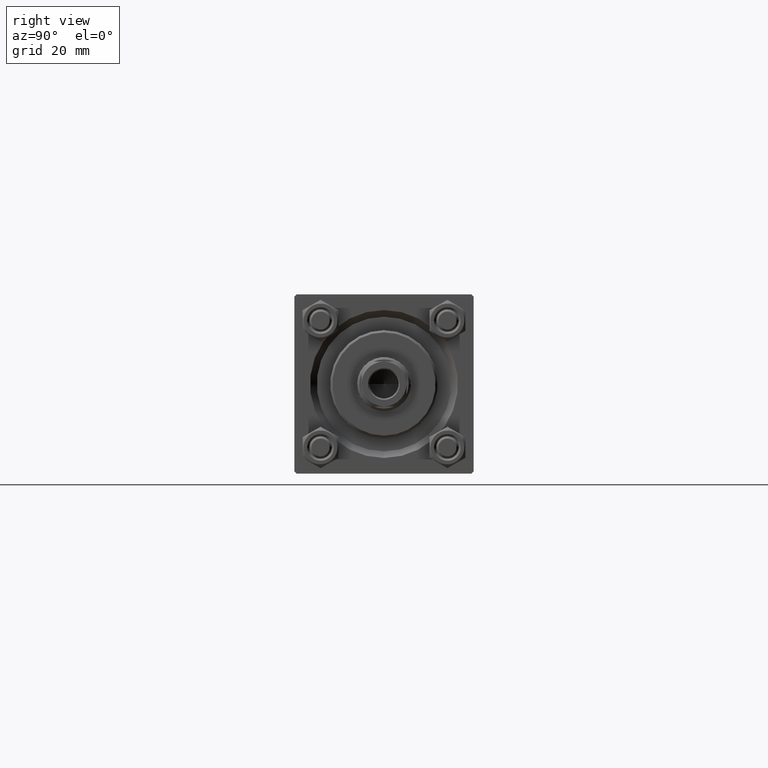
[diagram: clean part render]
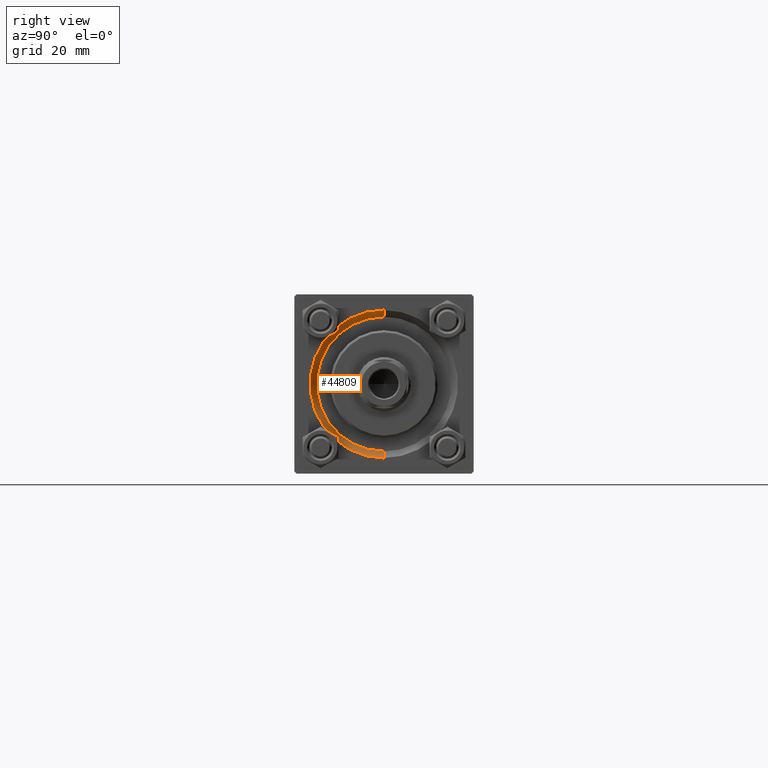
[diagram: same view with one face highlighted and labeled with its STEP entity id]
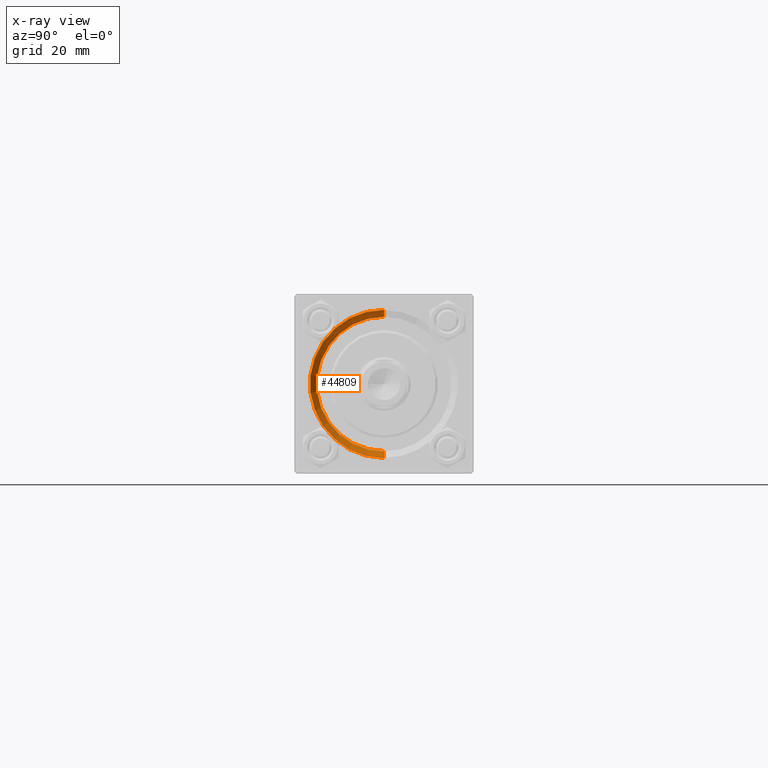
[diagram: x-ray of the same camera — body ghosted, the highlighted face saturated]
A machine part, right view. The second image highlights one B-rep face of the part: STEP entity #44809.
The next image is the same camera in x-ray: the body ghosted, the highlighted face saturated — about 0% of this face is hidden behind the body in this view.
In plain terms, the highlighted conical surface has half-angle 45 deg.
Its self-contained STEP definition (entity closure, byte-faithful):
#6 = EDGE_CURVE ( 'NONE', #19409, #27250, #45078, .T. ) ;
#1139 = ORIENTED_EDGE ( 'NONE', *, *, #8261, .F. ) ;
#2991 = ORIENTED_EDGE ( 'NONE', *, *, #6, .T. ) ;
#3810 = CARTESIAN_POINT ( 'NONE',  ( 119.0000000000000142, 2.020667218593134678E-15, 16.50000000000001421 ) ) ;
#5113 = DIRECTION ( 'NONE',  ( 1.000000000000000000, 0.000000000000000000, 0.000000000000000000 ) ) ;
#5197 = CARTESIAN_POINT ( 'NONE',  ( 117.5000000000000000, 0.000000000000000000, -15.00000000000000000 ) ) ;
#5818 = DIRECTION ( 'NONE',  ( 0.7071067811865474617, 8.659560562354932858E-17, 0.7071067811865474617 ) ) ;
#6217 = CARTESIAN_POINT ( 'NONE',  ( 117.5000000000000000, 0.000000000000000000, -15.00000000000000000 ) ) ;
#7451 = CONICAL_SURFACE ( 'NONE', #25033, 15.00000000000000000, 0.7853981633974482790 ) ;
#7700 = VERTEX_POINT ( 'NONE', #36272 ) ;
#8261 = EDGE_CURVE ( 'NONE', #47518, #7700, #26633, .T. ) ;
#8492 = VECTOR ( 'NONE', #5818, 1000.000000000000114 ) ;
#9533 = ORIENTED_EDGE ( 'NONE', *, *, #24815, .F. ) ;
#11194 = CARTESIAN_POINT ( 'NONE',  ( 117.5000000000000000, 0.000000000000000000, 0.000000000000000000 ) ) ;
#11445 = DIRECTION ( 'NONE',  ( 0.000000000000000000, 0.000000000000000000, -1.000000000000000000 ) ) ;
#12186 = CARTESIAN_POINT ( 'NONE',  ( 117.5000000000000000, 0.000000000000000000, 0.000000000000000000 ) ) ;
#14725 = FACE_OUTER_BOUND ( 'NONE', #31870, .T. ) ;
#19409 = VERTEX_POINT ( 'NONE', #37952 ) ;
#19502 = ORIENTED_EDGE ( 'NONE', *, *, #44978, .F. ) ;
#22012 = DIRECTION ( 'NONE',  ( -1.000000000000000000, -0.000000000000000000, -0.000000000000000000 ) ) ;
#22170 = CARTESIAN_POINT ( 'NONE',  ( 117.5000000000000000, 1.836970198721029589E-15, 15.00000000000000000 ) ) ;
#22265 = DIRECTION ( 'NONE',  ( 1.000000000000000000, 0.000000000000000000, 0.000000000000000000 ) ) ;
#22733 = CIRCLE ( 'NONE', #42044, 15.00000000000000000 ) ;
#24815 = EDGE_CURVE ( 'NONE', #7700, #27250, #36520, .T. ) ;
#25033 = AXIS2_PLACEMENT_3D ( 'NONE', #11194, #22265, #11445 ) ;
#26633 = LINE ( 'NONE', #5197, #31979 ) ;
#27250 = VERTEX_POINT ( 'NONE', #3810 ) ;
#27536 = DIRECTION ( 'NONE',  ( 0.000000000000000000, 0.000000000000000000, 1.000000000000000000 ) ) ;
#27861 = DIRECTION ( 'NONE',  ( 0.7071067811865474617, 0.000000000000000000, -0.7071067811865474617 ) ) ;
#28812 = DIRECTION ( 'NONE',  ( 0.000000000000000000, 0.000000000000000000, 1.000000000000000000 ) ) ;
#31870 = EDGE_LOOP ( 'NONE', ( #19502, #2991, #9533, #1139 ) ) ;
#31979 = VECTOR ( 'NONE', #27861, 1000.000000000000114 ) ;
#36272 = CARTESIAN_POINT ( 'NONE',  ( 119.0000000000000142, 0.000000000000000000, -16.50000000000001421 ) ) ;
#36520 = CIRCLE ( 'NONE', #41339, 16.50000000000001421 ) ;
#37952 = CARTESIAN_POINT ( 'NONE',  ( 117.5000000000000000, 1.836970198721029589E-15, 15.00000000000000000 ) ) ;
#41339 = AXIS2_PLACEMENT_3D ( 'NONE', #44917, #22012, #28812 ) ;
#42044 = AXIS2_PLACEMENT_3D ( 'NONE', #12186, #5113, #27536 ) ;
#44809 = ADVANCED_FACE ( 'NONE', ( #14725 ), #7451, .F. ) ;
#44917 = CARTESIAN_POINT ( 'NONE',  ( 119.0000000000000142, 0.000000000000000000, 0.000000000000000000 ) ) ;
#44978 = EDGE_CURVE ( 'NONE', #19409, #47518, #22733, .T. ) ;
#45078 = LINE ( 'NONE', #22170, #8492 ) ;
#47518 = VERTEX_POINT ( 'NONE', #6217 ) ;